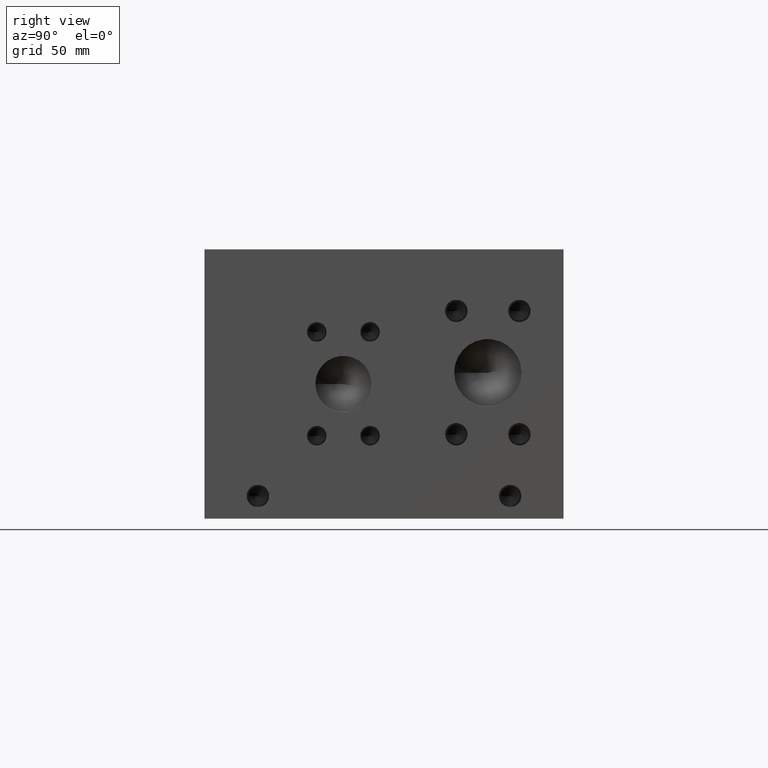
[diagram: clean part render]
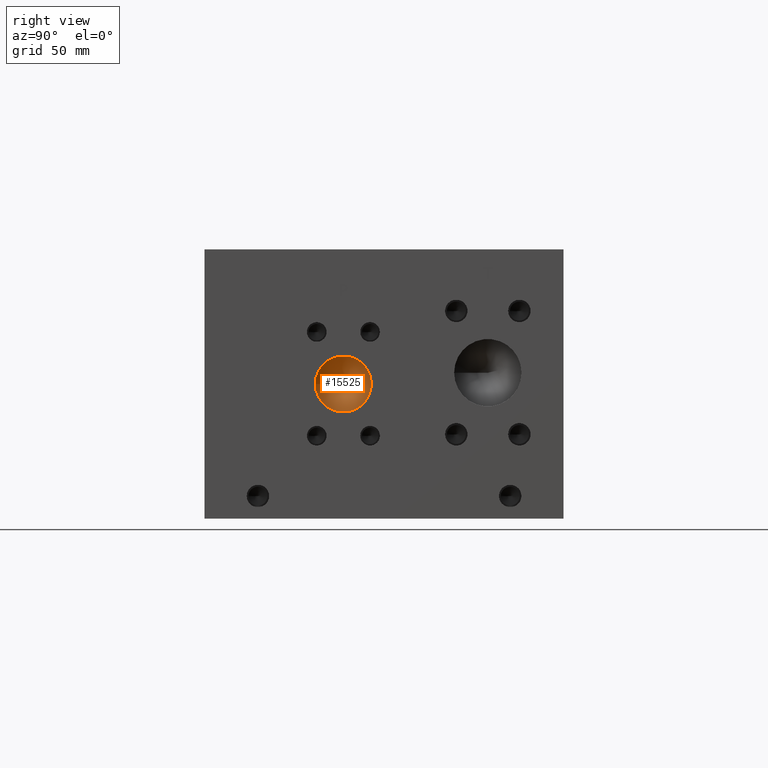
[diagram: same view with one face highlighted and labeled with its STEP entity id]
A machine part, right view. The second image highlights one B-rep face of the part: STEP entity #15525.
In plain terms, the highlighted conical surface has half-angle 60 deg.
Its self-contained STEP definition (entity closure, byte-faithful):
#55=CONICAL_SURFACE('',#16474,7.9375,1.0471975511966);
#525=CIRCLE('',#16475,15.875);
#526=CIRCLE('',#16476,15.875);
#2087=FACE_OUTER_BOUND('',#3029,.T.);
#3029=EDGE_LOOP('',(#13190,#13191,#13192,#13193));
#4443=LINE('',#26402,#5774);
#5774=VECTOR('',#19637,7.9375);
#7165=VERTEX_POINT('',#26398);
#7166=VERTEX_POINT('',#26399);
#7167=VERTEX_POINT('',#26401);
#9259=EDGE_CURVE('',#7165,#7166,#525,.T.);
#9260=EDGE_CURVE('',#7166,#7167,#4443,.T.);
#9261=EDGE_CURVE('',#7166,#7165,#526,.T.);
#13190=ORIENTED_EDGE('',*,*,#9259,.T.);
#13191=ORIENTED_EDGE('',*,*,#9260,.T.);
#13192=ORIENTED_EDGE('',*,*,#9260,.F.);
#13193=ORIENTED_EDGE('',*,*,#9261,.T.);
#15525=ADVANCED_FACE('',(#2087),#55,.F.);
#16474=AXIS2_PLACEMENT_3D('',#26397,#19633,#19634);
#16475=AXIS2_PLACEMENT_3D('',#26400,#19635,#19636);
#16476=AXIS2_PLACEMENT_3D('',#26403,#19638,#19639);
#19633=DIRECTION('center_axis',(1.,0.,0.));
#19634=DIRECTION('ref_axis',(0.,1.,0.));
#19635=DIRECTION('center_axis',(1.,0.,0.));
#19636=DIRECTION('ref_axis',(0.,1.,0.));
#19637=DIRECTION('',(-0.5,0.866025403784439,1.06057523872491E-16));
#19638=DIRECTION('center_axis',(1.,0.,0.));
#19639=DIRECTION('ref_axis',(0.,1.,0.));
#26397=CARTESIAN_POINT('Origin',(313.276842238307,78.5876,76.2));
#26398=CARTESIAN_POINT('',(317.85956,94.4626,76.2));
#26399=CARTESIAN_POINT('',(317.85956,62.7126,76.2));
#26400=CARTESIAN_POINT('Origin',(317.85956,78.5876,76.2));
#26401=CARTESIAN_POINT('',(308.694124476615,78.5876,76.2));
#26402=CARTESIAN_POINT('',(313.276842238307,70.6501,76.2));
#26403=CARTESIAN_POINT('Origin',(317.85956,78.5876,76.2));